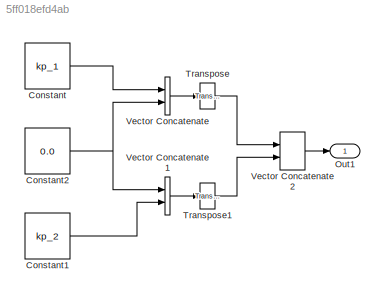
MODEL slx_5ff018efd4ab
KIND model
CONFIG AbsTol = auto
CONFIG EnableMultiTasking = off
CONFIG FixedStep = auto
CONFIG MaxStep = auto
CONFIG MinStep = auto
CONFIG RelTol = 1e-3
CONFIG SampleTimeConstraint = Unconstrained
CONFIG SolverName = VariableStepAuto
CONFIG StartTime = 0.0
CONFIG StopTime = 10.0
BLOCK [Constant] Constant
  Value = kp_1
BLOCK [Constant] Constant1
  Value = kp_2
BLOCK [Constant] Constant2
  Value = 0.0
BLOCK [Outport] Out1
BLOCK [Reference] Transpose  REF=matrix_library/Transpose
  Ports = [1, 1]
  SourceBlock = matrix_library/Transpose
  SourceProductBaseCode = SL
  SourceType = Transpose
BLOCK [Reference] Transpose1  REF=matrix_library/Transpose
  Ports = [1, 1]
  SourceBlock = matrix_library/Transpose
  SourceProductBaseCode = SL
  SourceType = Transpose
BLOCK [Concatenate] Vector Concatenate
  Ports = [2, 1]
BLOCK [Concatenate] Vector Concatenate1
  Ports = [2, 1]
BLOCK [Concatenate] Vector Concatenate2
  Mode = Multidimensional array
  Ports = [2, 1]
LINE Constant1:1 -> Vector Concatenate1:2
NET Constant2:1 -> Vector Concatenate1:1, Vector Concatenate:2
LINE Constant:1 -> Vector Concatenate:1
LINE Transpose1:1 -> Vector Concatenate2:2
LINE Transpose:1 -> Vector Concatenate2:1
LINE Vector Concatenate1:1 -> Transpose1:1
LINE Vector Concatenate2:1 -> Out1:1
LINE Vector Concatenate:1 -> Transpose:1
note: NET lines group one-source signal fan-out (src -> all destinations, sorted); 1:1 wires keep LINE
